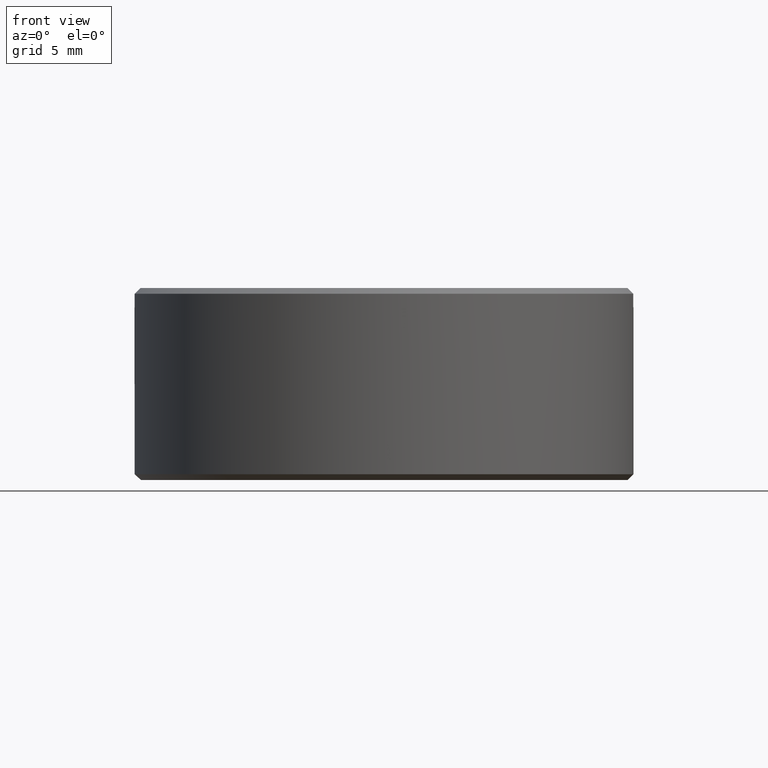
[diagram: clean part render]
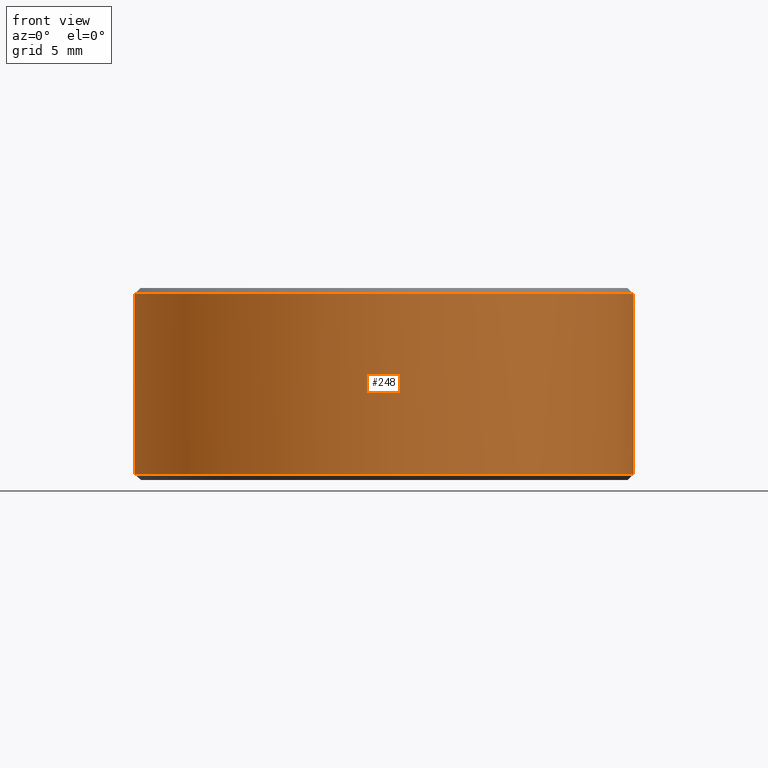
[diagram: same view with one face highlighted and labeled with its STEP entity id]
A machine part, front view. The second image highlights one B-rep face of the part: STEP entity #248.
In plain terms, the highlighted cylindrical surface (bore or boss wall) has radius 13 mm, axis along (-0, -0, -1).
Its self-contained STEP definition (entity closure, byte-faithful):
#41 = ORIENTED_EDGE ( 'NONE', *, *, #1005, .F. ) ;
#60 = LINE ( 'NONE', #1433, #1250 ) ;
#73 = CARTESIAN_POINT ( 'NONE',  ( 0.000000000000000000, 0.000000000000000000, 4.000000000000000000 ) ) ;
#89 = ORIENTED_EDGE ( 'NONE', *, *, #1227, .T. ) ;
#101 = CYLINDRICAL_SURFACE ( 'NONE', #1047, 13.00000000000000355 ) ;
#143 = VERTEX_POINT ( 'NONE', #1193 ) ;
#158 = ORIENTED_EDGE ( 'NONE', *, *, #567, .F. ) ;
#185 = DIRECTION ( 'NONE',  ( -1.000000000000000000, 1.687538997430237941E-14, 0.000000000000000000 ) ) ;
#193 = EDGE_CURVE ( 'NONE', #441, #1475, #60, .T. ) ;
#248 = ADVANCED_FACE ( 'NONE', ( #1473, #1200 ), #101, .T. ) ;
#284 = VERTEX_POINT ( 'NONE', #348 ) ;
#296 = DIRECTION ( 'NONE',  ( -0.000000000000000000, -0.000000000000000000, -1.000000000000000000 ) ) ;
#348 = CARTESIAN_POINT ( 'NONE',  ( -12.98836017363239037, -0.5500000000000000444, 4.699999999999988631 ) ) ;
#353 = DIRECTION ( 'NONE',  ( -1.000000000000000000, 0.000000000000000000, 0.000000000000000000 ) ) ;
#365 = LINE ( 'NONE', #1592, #760 ) ;
#378 = EDGE_CURVE ( 'NONE', #859, #859, #467, .T. ) ;
#402 = VERTEX_POINT ( 'NONE', #508 ) ;
#407 = CARTESIAN_POINT ( 'NONE',  ( -12.98836017363239037, 0.5500000000000000444, 4.699999999999988631 ) ) ;
#420 = DIRECTION ( 'NONE',  ( -0.000000000000000000, 0.000000000000000000, 1.000000000000000000 ) ) ;
#441 = VERTEX_POINT ( 'NONE', #501 ) ;
#442 = CARTESIAN_POINT ( 'NONE',  ( 12.98836017363239037, -0.5500000000000000444, 4.000000000000000000 ) ) ;
#467 = CIRCLE ( 'NONE', #833, 13.00000000000000355 ) ;
#490 = DIRECTION ( 'NONE',  ( 1.000000000000000000, 0.000000000000000000, -6.672013369141564231E-17 ) ) ;
#496 = CIRCLE ( 'NONE', #1409, 13.00000000000000355 ) ;
#501 = CARTESIAN_POINT ( 'NONE',  ( 12.98836017363239037, 0.5500000000000000444, 4.699999999999988631 ) ) ;
#507 = EDGE_CURVE ( 'NONE', #1107, #402, #779, .T. ) ;
#508 = CARTESIAN_POINT ( 'NONE',  ( 12.98836017363239037, -0.5500000000000000444, 4.699999999999988631 ) ) ;
#567 = EDGE_CURVE ( 'NONE', #1107, #1475, #1122, .T. ) ;
#571 = DIRECTION ( 'NONE',  ( -1.000000000000000000, 0.000000000000000000, 0.000000000000000000 ) ) ;
#612 = CARTESIAN_POINT ( 'NONE',  ( 0.000000000000000000, 0.000000000000000000, -4.699999999999999289 ) ) ;
#688 = LINE ( 'NONE', #1192, #891 ) ;
#690 = CARTESIAN_POINT ( 'NONE',  ( 12.98836017363239037, 0.5500000000000000444, 4.000000000000000000 ) ) ;
#703 = AXIS2_PLACEMENT_3D ( 'NONE', #1076, #1172, #817 ) ;
#719 = DIRECTION ( 'NONE',  ( -0.000000000000000000, -0.000000000000000000, -1.000000000000000000 ) ) ;
#727 = AXIS2_PLACEMENT_3D ( 'NONE', #1028, #1063, #185 ) ;
#733 = DIRECTION ( 'NONE',  ( 0.000000000000000000, -0.000000000000000000, 1.000000000000000000 ) ) ;
#741 = VERTEX_POINT ( 'NONE', #742 ) ;
#742 = CARTESIAN_POINT ( 'NONE',  ( -12.98836017363239037, -0.5500000000000000444, 4.000000000000000000 ) ) ;
#758 = ORIENTED_EDGE ( 'NONE', *, *, #778, .T. ) ;
#760 = VECTOR ( 'NONE', #733, 1000.000000000000000 ) ;
#778 = EDGE_CURVE ( 'NONE', #284, #741, #688, .T. ) ;
#779 = LINE ( 'NONE', #789, #857 ) ;
#789 = CARTESIAN_POINT ( 'NONE',  ( 12.98836017363239037, -0.5500000000000000444, 4.000000000000000000 ) ) ;
#808 = DIRECTION ( 'NONE',  ( -1.000000000000000000, 0.000000000000000000, 0.000000000000000000 ) ) ;
#817 = DIRECTION ( 'NONE',  ( -1.000000000000000000, 0.000000000000000000, 0.000000000000000000 ) ) ;
#833 = AXIS2_PLACEMENT_3D ( 'NONE', #612, #1015, #490 ) ;
#857 = VECTOR ( 'NONE', #420, 1000.000000000000000 ) ;
#859 = VERTEX_POINT ( 'NONE', #956 ) ;
#891 = VECTOR ( 'NONE', #946, 1000.000000000000000 ) ;
#905 = DIRECTION ( 'NONE',  ( -0.000000000000000000, 0.000000000000000000, -1.000000000000000000 ) ) ;
#932 = ORIENTED_EDGE ( 'NONE', *, *, #193, .T. ) ;
#946 = DIRECTION ( 'NONE',  ( 0.000000000000000000, -0.000000000000000000, -1.000000000000000000 ) ) ;
#956 = CARTESIAN_POINT ( 'NONE',  ( 13.00000000000000355, 0.000000000000000000, -4.700000000000000178 ) ) ;
#1005 = EDGE_CURVE ( 'NONE', #143, #741, #1181, .T. ) ;
#1015 = DIRECTION ( 'NONE',  ( 0.000000000000000000, 0.000000000000000000, -1.000000000000000000 ) ) ;
#1028 = CARTESIAN_POINT ( 'NONE',  ( 0.000000000000000000, 0.000000000000000000, 4.000000000000000000 ) ) ;
#1047 = AXIS2_PLACEMENT_3D ( 'NONE', #1344, #719, #353 ) ;
#1052 = ORIENTED_EDGE ( 'NONE', *, *, #1054, .T. ) ;
#1054 = EDGE_CURVE ( 'NONE', #402, #284, #496, .T. ) ;
#1062 = EDGE_CURVE ( 'NONE', #1391, #441, #1384, .T. ) ;
#1063 = DIRECTION ( 'NONE',  ( 0.000000000000000000, 0.000000000000000000, 1.000000000000000000 ) ) ;
#1067 = CARTESIAN_POINT ( 'NONE',  ( 0.000000000000000000, 0.000000000000000000, 4.699999999999987743 ) ) ;
#1076 = CARTESIAN_POINT ( 'NONE',  ( 0.000000000000000000, 0.000000000000000000, 4.699999999999987743 ) ) ;
#1107 = VERTEX_POINT ( 'NONE', #442 ) ;
#1111 = EDGE_LOOP ( 'NONE', ( #1216 ) ) ;
#1122 = CIRCLE ( 'NONE', #727, 13.00000000000000355 ) ;
#1172 = DIRECTION ( 'NONE',  ( -0.000000000000000000, -0.000000000000000000, -1.000000000000000000 ) ) ;
#1181 = CIRCLE ( 'NONE', #1541, 13.00000000000000355 ) ;
#1192 = CARTESIAN_POINT ( 'NONE',  ( -12.98836017363239037, -0.5500000000000000444, 4.000000000000000000 ) ) ;
#1193 = CARTESIAN_POINT ( 'NONE',  ( -12.98836017363239037, 0.5500000000000000444, 4.000000000000000000 ) ) ;
#1200 = FACE_OUTER_BOUND ( 'NONE', #1111, .T. ) ;
#1202 = DIRECTION ( 'NONE',  ( 0.000000000000000000, 0.000000000000000000, 1.000000000000000000 ) ) ;
#1210 = ORIENTED_EDGE ( 'NONE', *, *, #507, .T. ) ;
#1216 = ORIENTED_EDGE ( 'NONE', *, *, #378, .F. ) ;
#1227 = EDGE_CURVE ( 'NONE', #143, #1391, #365, .T. ) ;
#1250 = VECTOR ( 'NONE', #905, 1000.000000000000000 ) ;
#1344 = CARTESIAN_POINT ( 'NONE',  ( 0.000000000000000000, 0.000000000000000000, 5.000000000000000000 ) ) ;
#1377 = EDGE_LOOP ( 'NONE', ( #158, #1210, #1052, #758, #41, #89, #1599, #932 ) ) ;
#1384 = CIRCLE ( 'NONE', #703, 13.00000000000000355 ) ;
#1391 = VERTEX_POINT ( 'NONE', #407 ) ;
#1409 = AXIS2_PLACEMENT_3D ( 'NONE', #1067, #296, #571 ) ;
#1433 = CARTESIAN_POINT ( 'NONE',  ( 12.98836017363239037, 0.5500000000000000444, 4.000000000000000000 ) ) ;
#1473 = FACE_OUTER_BOUND ( 'NONE', #1377, .T. ) ;
#1475 = VERTEX_POINT ( 'NONE', #690 ) ;
#1541 = AXIS2_PLACEMENT_3D ( 'NONE', #73, #1202, #808 ) ;
#1592 = CARTESIAN_POINT ( 'NONE',  ( -12.98836017363239037, 0.5500000000000000444, 4.000000000000000000 ) ) ;
#1599 = ORIENTED_EDGE ( 'NONE', *, *, #1062, .T. ) ;